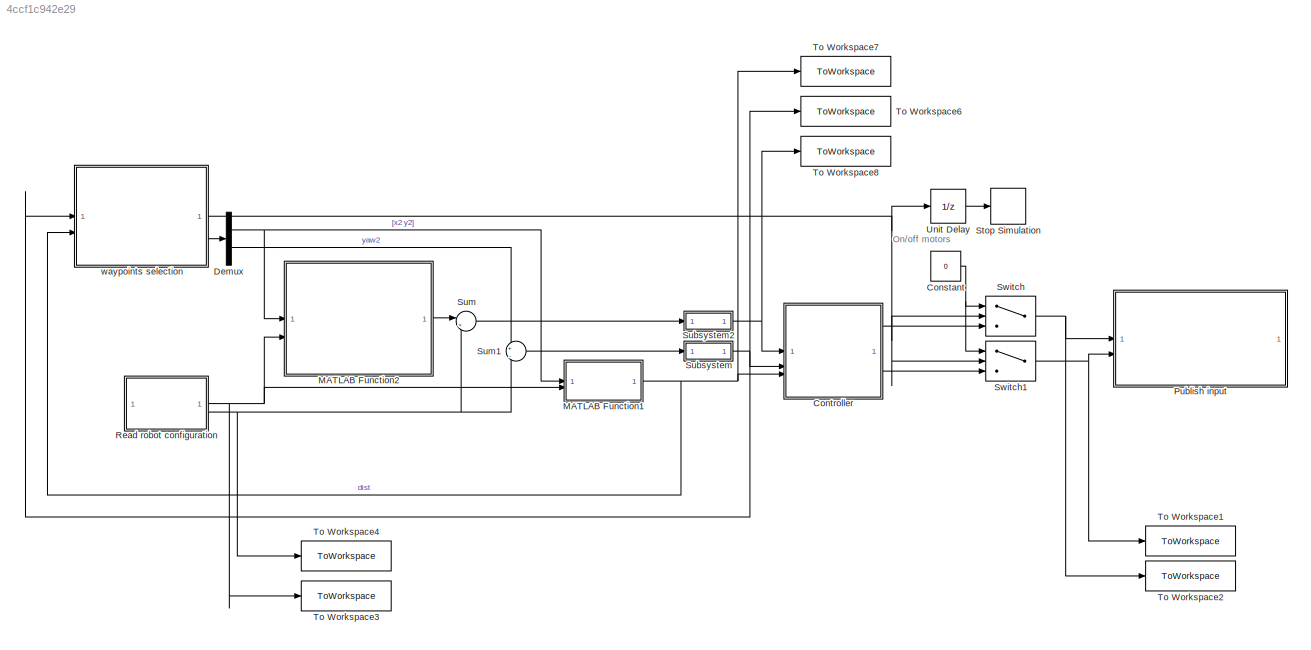
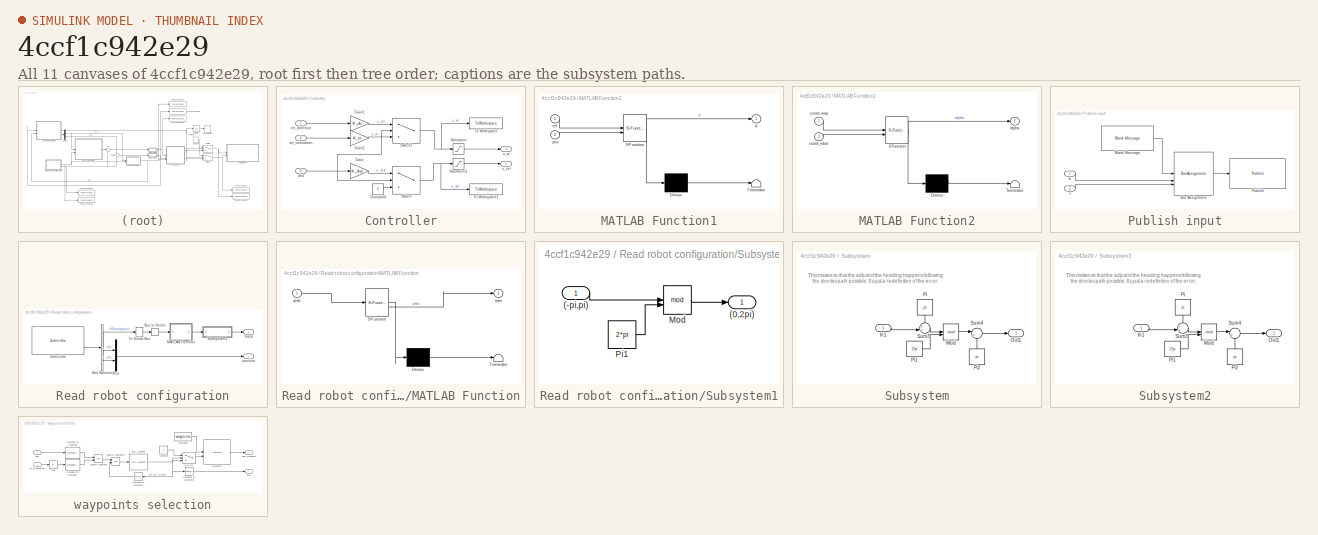
[diagram: thumbnail index - all 11 canvases of the model, root first then tree order]
MODEL slx_4ccf1c942e29
KIND model
CONFIG AbsTol = auto
CONFIG EnableMultiTasking = off
CONFIG FixedStep = 1/f_sim
CONFIG MaxStep = auto
CONFIG MinStep = auto
CONFIG RelTol = 1e-3
CONFIG SampleTimeConstraint = Unconstrained
CONFIG SolverName = FixedStepAuto
CONFIG StartTime = 0.0
CONFIG StopTime = inf
BLOCK [Constant] Constant
  Value = 0
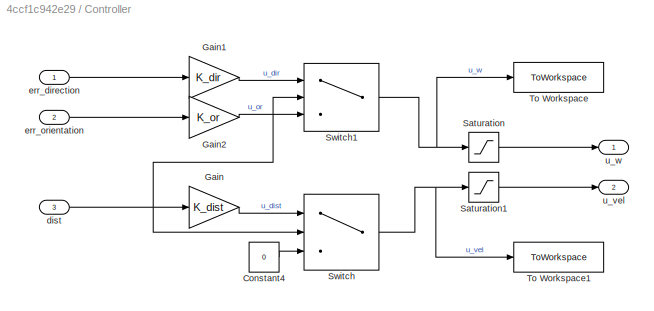
BLOCK [SubSystem] Controller
BLOCK [Constant] Controller/Constant4
  Value = 0
BLOCK [Gain] Controller/Gain
  Gain = K_dist
BLOCK [Gain] Controller/Gain1
  Gain = K_dir
BLOCK [Gain] Controller/Gain2
  Gain = K_or
BLOCK [Saturate] Controller/Saturation
  LowerLimit = w_min
  UpperLimit = w_max
BLOCK [Saturate] Controller/Saturation1
  LowerLimit = v_min
  UpperLimit = v_max
BLOCK [Switch] Controller/Switch
  Criteria = u2 > Threshold
  InputSameDT = off
  SaturateOnIntegerOverflow = off
  Threshold = r
BLOCK [Switch] Controller/Switch1
  Criteria = u2 > Threshold
  InputSameDT = off
  SaturateOnIntegerOverflow = off
  Threshold = r
BLOCK [ToWorkspace] Controller/To Workspace
  FixptAsFi = on
  MaxDataPoints = inf
  SampleTime = -1
  Save2DSignal = 2-D array (concatenate along first dimension)
  VariableName = u_w
BLOCK [ToWorkspace] Controller/To Workspace1
  FixptAsFi = on
  MaxDataPoints = inf
  SampleTime = -1
  Save2DSignal = 2-D array (concatenate along first dimension)
  VariableName = u_v
BLOCK [Inport] Controller/dist
  Port = 3
BLOCK [Inport] Controller/err_direction
BLOCK [Inport] Controller/err_orientation
  Port = 2
BLOCK [Outport] Controller/u_vel
  Port = 2
BLOCK [Outport] Controller/u_w
BLOCK [Demux] Demux
  Outputs = 2
BLOCK [SubSystem] MATLAB Function1
  ErrorFcn = Stateflow.Translate.translate
  PermitHierarchicalResolution = ExplicitOnly
  SFBlockType = MATLAB Function
  TreatAsAtomicUnit = on
BLOCK [Demux] MATLAB Function1/ Demux 
  Outputs = 1
BLOCK [S-Function] MATLAB Function1/ SFunction 
  EnableBusSupport = on
  FunctionName = sf_sfun
  PortCounts = [2 2]
  SFcnIsStateOwnerBlock = off
  SFunctionDeploymentMode = off
  Tag = Stateflow S-Function 1
BLOCK [Terminator] MATLAB Function1/ Terminator 
BLOCK [Outport] MATLAB Function1/d
BLOCK [Inport] MATLAB Function1/pos
  Port = 2
BLOCK [Inport] MATLAB Function1/ref
BLOCK [SubSystem] MATLAB Function2
  ErrorFcn = Stateflow.Translate.translate
  PermitHierarchicalResolution = ExplicitOnly
  SFBlockType = MATLAB Function
  TreatAsAtomicUnit = on
BLOCK [Demux] MATLAB Function2/ Demux 
  Outputs = 1
BLOCK [S-Function] MATLAB Function2/ SFunction 
  EnableBusSupport = on
  FunctionName = sf_sfun
  PortCounts = [2 2]
  SFcnIsStateOwnerBlock = off
  SFunctionDeploymentMode = off
  Tag = Stateflow S-Function 3
BLOCK [Terminator] MATLAB Function2/ Terminator 
BLOCK [Outport] MATLAB Function2/alpha
BLOCK [Inport] MATLAB Function2/coord_robot
  Port = 2
BLOCK [Inport] MATLAB Function2/coord_way
BLOCK [SubSystem] Publish input
BLOCK [Reference] Publish input/Blank Message  REF=robotlib/Blank Message
  SourceBlock = robotlib/Blank Message
  SourceType = ROS Blank Message
BLOCK [BusAssignment] Publish input/Bus Assignment
  AssignedSignals = Angular.Z,Linear.X
BLOCK [Reference] Publish input/Publish  REF=robotlib/Publish
  SourceBlock = robotlib/Publish
  SourceType = ROS Publish
BLOCK [Inport] Publish input/v
  Port = 2
BLOCK [Inport] Publish input/w
BLOCK [SubSystem] Read robot configuration
BLOCK [BusSelector] Read robot configuration/Bus Selector
  OutputSignals = Pose.Pose.Orientation,Pose.Pose.Position.X,Pose.Pose.Position.Y
BLOCK [BusToVector] Read robot configuration/Bus to Vector
BLOCK [SubSystem] Read robot configuration/MATLAB Function
  ErrorFcn = Stateflow.Translate.translate
  PermitHierarchicalResolution = ExplicitOnly
  SFBlockType = MATLAB Function
  TreatAsAtomicUnit = on
BLOCK [Demux] Read robot configuration/MATLAB Function/ Demux 
  Outputs = 1
BLOCK [S-Function] Read robot configuration/MATLAB Function/ SFunction 
  EnableBusSupport = on
  FunctionName = sf_sfun
  PortCounts = [1 2]
  SFcnIsStateOwnerBlock = off
  SFunctionDeploymentMode = off
  Tag = Stateflow S-Function 2
BLOCK [Terminator] Read robot configuration/MATLAB Function/ Terminator 
BLOCK [Inport] Read robot configuration/MATLAB Function/quat
BLOCK [Outport] Read robot configuration/MATLAB Function/yaw
BLOCK [Mux] Read robot configuration/Mux
  DisplayOption = bar
  Inputs = 2
BLOCK [Reference] Read robot configuration/Subscribe  REF=robotlib/Subscribe
  SourceBlock = robotlib/Subscribe
  SourceType = ROS Subscribe
BLOCK [SubSystem] Read robot configuration/Subsystem1
BLOCK [Inport] Read robot configuration/Subsystem1/(-pi,pi)
BLOCK [Outport] Read robot configuration/Subsystem1/(0,2pi)
BLOCK [Math] Read robot configuration/Subsystem1/Mod
  Operator = mod
BLOCK [Constant] Read robot configuration/Subsystem1/Pi1
  OutDataTypeStr = Inherit: Inherit via back propagation
  Value = 2*pi
BLOCK [SignalConversion] Read robot configuration/To Virtual Bus
  ConversionOutput = Virtual bus
  OverrideOpt = off
BLOCK [Outport] Read robot configuration/position
BLOCK [Outport] Read robot configuration/theta
  Port = 2
BLOCK [Stop] Stop Simulation
BLOCK [SubSystem] Subsystem
BLOCK [Inport] Subsystem/In1
BLOCK [Math] Subsystem/Mod
  Operator = mod
BLOCK [Outport] Subsystem/Out1
BLOCK [Constant] Subsystem/Pi
  NameLocation = left
  OutDataTypeStr = Inherit: Inherit via back propagation
  Value = pi
BLOCK [Constant] Subsystem/Pi1
  OutDataTypeStr = Inherit: Inherit via back propagation
  Value = 2*pi
BLOCK [Constant] Subsystem/Pi2
  NameLocation = right
  OutDataTypeStr = Inherit: Inherit via back propagation
  Value = pi
BLOCK [Sum] Subsystem/Sum3
  Inputs = ++|
BLOCK [Sum] Subsystem/Sum4
  Inputs = |+-
BLOCK [SubSystem] Subsystem2
BLOCK [Inport] Subsystem2/In1
BLOCK [Math] Subsystem2/Mod
  Operator = mod
BLOCK [Outport] Subsystem2/Out1
BLOCK [Constant] Subsystem2/Pi
  NameLocation = left
  OutDataTypeStr = Inherit: Inherit via back propagation
  Value = pi
BLOCK [Constant] Subsystem2/Pi1
  OutDataTypeStr = Inherit: Inherit via back propagation
  Value = 2*pi
BLOCK [Constant] Subsystem2/Pi2
  NameLocation = right
  OutDataTypeStr = Inherit: Inherit via back propagation
  Value = pi
BLOCK [Sum] Subsystem2/Sum3
  Inputs = ++|
BLOCK [Sum] Subsystem2/Sum4
  Inputs = |+-
BLOCK [Sum] Sum
  Inputs = |+-
BLOCK [Sum] Sum1
  Inputs = +|-
BLOCK [Switch] Switch
  Criteria = u2 > Threshold
  InputSameDT = off
  SaturateOnIntegerOverflow = off
BLOCK [Switch] Switch1
  Criteria = u2 > Threshold
  InputSameDT = off
  SaturateOnIntegerOverflow = off
BLOCK [ToWorkspace] To Workspace1
  FixptAsFi = on
  MaxDataPoints = inf
  SampleTime = -1
  Save2DSignal = 2-D array (concatenate along first dimension)
  VariableName = v_cmd
BLOCK [ToWorkspace] To Workspace2
  FixptAsFi = on
  MaxDataPoints = inf
  SampleTime = -1
  Save2DSignal = 2-D array (concatenate along first dimension)
  VariableName = w_cmd
BLOCK [ToWorkspace] To Workspace3
  FixptAsFi = on
  MaxDataPoints = inf
  SampleTime = -1
  Save2DSignal = 2-D array (concatenate along first dimension)
  VariableName = position
BLOCK [ToWorkspace] To Workspace4
  FixptAsFi = on
  MaxDataPoints = inf
  SampleTime = -1
  Save2DSignal = 2-D array (concatenate along first dimension)
  VariableName = orientation
BLOCK [ToWorkspace] To Workspace6
  FixptAsFi = on
  MaxDataPoints = inf
  SampleTime = -1
  Save2DSignal = 2-D array (concatenate along first dimension)
  VariableName = err_orient
BLOCK [ToWorkspace] To Workspace7
  FixptAsFi = on
  MaxDataPoints = inf
  SampleTime = -1
  Save2DSignal = 2-D array (concatenate along first dimension)
  VariableName = dist
BLOCK [ToWorkspace] To Workspace8
  FixptAsFi = on
  MaxDataPoints = inf
  SampleTime = -1
  Save2DSignal = 2-D array (concatenate along first dimension)
  VariableName = err_dir
BLOCK [UnitDelay] Unit Delay
  HasFrameUpgradeWarning = on
  SampleTime = 3
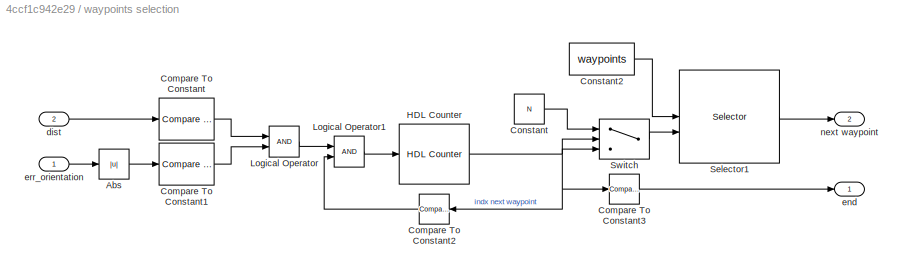
BLOCK [SubSystem] waypoints selection
BLOCK [Abs] waypoints selection/Abs
  SaturateOnIntegerOverflow = off
BLOCK [Reference] waypoints selection/Compare To Constant  REF=simulink/Logic and Bit
Operations/Compare
To Constant
  SourceBlock = simulink/Logic and Bit\nOperations/Compare\nTo Constant
  SourceType = Compare To Constant
BLOCK [Reference] waypoints selection/Compare To Constant1  REF=simulink/Logic and Bit
Operations/Compare
To Constant
  SourceBlock = simulink/Logic and Bit\nOperations/Compare\nTo Constant
  SourceType = Compare To Constant
BLOCK [Reference] waypoints selection/Compare To Constant2  REF=simulink/Logic and Bit
Operations/Compare
To Constant
  SourceBlock = simulink/Logic and Bit\nOperations/Compare\nTo Constant
  SourceType = Compare To Constant
BLOCK [Reference] waypoints selection/Compare To Constant3  REF=simulink/Logic and Bit
Operations/Compare
To Constant
  SourceBlock = simulink/Logic and Bit\nOperations/Compare\nTo Constant
  SourceType = Compare To Constant
BLOCK [Constant] waypoints selection/Constant
  Value = N
BLOCK [Constant] waypoints selection/Constant2
  Value = waypoints
BLOCK [Reference] waypoints selection/HDL Counter  REF=hdlsllib/Sources/HDL Counter
  SourceBlock = hdlsllib/Sources/HDL Counter
  SourceType = HDL Counter
BLOCK [Logic] waypoints selection/Logical Operator
  AllPortsSameDT = off
  OutDataTypeStr = boolean
BLOCK [Logic] waypoints selection/Logical Operator1
  AllPortsSameDT = off
  OutDataTypeStr = boolean
BLOCK [Selector] waypoints selection/Selector1
  IndexOptions = Index vector (port),Select all
  Indices = [1 3],[1 2]
  InputPortWidth = 3
  NumberOfDimensions = 2
  OutputSizes = 1,1
BLOCK [Switch] waypoints selection/Switch
  Criteria = u2 > Threshold
  InputSameDT = off
  SaturateOnIntegerOverflow = off
  Threshold = N
BLOCK [Inport] waypoints selection/dist
  Port = 2
BLOCK [Outport] waypoints selection/end
BLOCK [Inport] waypoints selection/err_orientation
BLOCK [Outport] waypoints selection/next waypoint
  Port = 2
ANNOTATION (root): On/off motors
ANNOTATION Subsystem: This makes so that the adjust of the heading happens following the shortes path possible. It's just a redefinition of the error.
ANNOTATION Subsystem2: This makes so that the adjust of the heading happens following the shortes path possible. It's just a redefinition of the error.
NET Constant:1 -> Switch1:1, Switch:1
LINE Controller/Constant4:1 -> Controller/Switch:3
LINE Controller/Gain1:1 -> Controller/Switch1:1
LINE Controller/Gain2:1 -> Controller/Switch1:3
LINE Controller/Gain:1 -> Controller/Switch:1
LINE Controller/Saturation1:1 -> Controller/u_vel:1
LINE Controller/Saturation:1 -> Controller/u_w:1
NET Controller/Switch1:1 -> Controller/Saturation:1, Controller/To Workspace:1
NET Controller/Switch:1 -> Controller/Saturation1:1, Controller/To Workspace1:1
NET Controller/dist:1 -> Controller/Gain:1, Controller/Switch1:2, Controller/Switch:2
LINE Controller/err_direction:1 -> Controller/Gain1:1
LINE Controller/err_orientation:1 -> Controller/Gain2:1
LINE Controller:1 -> Switch:3
LINE Controller:2 -> Switch1:3
NET Demux:1 -> MATLAB Function1:1, MATLAB Function2:1
LINE Demux:2 -> Sum1:1
NET MATLAB Function1:1 -> Controller:3, To Workspace7:1, waypoints selection:2
LINE MATLAB Function2:1 -> Sum:1
LINE Publish input/Blank Message:1 -> Publish input/Bus Assignment:1
LINE Publish input/Bus Assignment:1 -> Publish input/Publish:1
LINE Publish input/v:1 -> Publish input/Bus Assignment:3
LINE Publish input/w:1 -> Publish input/Bus Assignment:2
LINE Read robot configuration/Bus Selector:1 -> Read robot configuration/To Virtual Bus:1
LINE Read robot configuration/Bus Selector:2 -> Read robot configuration/Mux:1
LINE Read robot configuration/Bus Selector:3 -> Read robot configuration/Mux:2
LINE Read robot configuration/Bus to Vector:1 -> Read robot configuration/MATLAB Function:1
LINE Read robot configuration/MATLAB Function:1 -> Read robot configuration/Subsystem1:1
LINE Read robot configuration/Mux:1 -> Read robot configuration/position:1
LINE Read robot configuration/Subscribe:2 -> Read robot configuration/Bus Selector:1
LINE Read robot configuration/Subsystem1/(-pi,pi):1 -> Read robot configuration/Subsystem1/Mod:1
LINE Read robot configuration/Subsystem1/Mod:1 -> Read robot configuration/Subsystem1/(0,2pi):1
LINE Read robot configuration/Subsystem1/Pi1:1 -> Read robot configuration/Subsystem1/Mod:2
LINE Read robot configuration/Subsystem1:1 -> Read robot configuration/theta:1
LINE Read robot configuration/To Virtual Bus:1 -> Read robot configuration/Bus to Vector:1
NET Read robot configuration:1 -> MATLAB Function1:2, MATLAB Function2:2, To Workspace3:1
NET Read robot configuration:2 -> Sum1:2, Sum:2, To Workspace4:1
LINE Subsystem/In1:1 -> Subsystem/Sum3:2
LINE Subsystem/Mod:1 -> Subsystem/Sum4:1
LINE Subsystem/Pi1:1 -> Subsystem/Mod:2
LINE Subsystem/Pi2:1 -> Subsystem/Sum4:2
LINE Subsystem/Pi:1 -> Subsystem/Sum3:1
LINE Subsystem/Sum3:1 -> Subsystem/Mod:1
LINE Subsystem/Sum4:1 -> Subsystem/Out1:1
LINE Subsystem2/In1:1 -> Subsystem2/Sum3:2
LINE Subsystem2/Mod:1 -> Subsystem2/Sum4:1
LINE Subsystem2/Pi1:1 -> Subsystem2/Mod:2
LINE Subsystem2/Pi2:1 -> Subsystem2/Sum4:2
LINE Subsystem2/Pi:1 -> Subsystem2/Sum3:1
LINE Subsystem2/Sum3:1 -> Subsystem2/Mod:1
LINE Subsystem2/Sum4:1 -> Subsystem2/Out1:1
NET Subsystem2:1 -> Controller:1, To Workspace8:1
NET Subsystem:1 -> Controller:2, To Workspace6:1, waypoints selection:1
LINE Sum1:1 -> Subsystem:1
LINE Sum:1 -> Subsystem2:1
NET Switch1:1 -> Publish input:2, To Workspace1:1
NET Switch:1 -> Publish input:1, To Workspace2:1
LINE Unit Delay:1 -> Stop Simulation:1
LINE waypoints selection/Abs:1 -> waypoints selection/Compare To Constant1:1
LINE waypoints selection/Compare To Constant1:1 -> waypoints selection/Logical Operator:2
LINE waypoints selection/Compare To Constant2:1 -> waypoints selection/Logical Operator1:2
LINE waypoints selection/Compare To Constant3:1 -> waypoints selection/end:1
LINE waypoints selection/Compare To Constant:1 -> waypoints selection/Logical Operator:1
LINE waypoints selection/Constant2:1 -> waypoints selection/Selector1:1
LINE waypoints selection/Constant:1 -> waypoints selection/Switch:1
NET waypoints selection/HDL Counter:1 -> waypoints selection/Compare To Constant2:1, waypoints selection/Compare To Constant3:1, waypoints selection/Switch:2, waypoints selection/Switch:3
LINE waypoints selection/Logical Operator1:1 -> waypoints selection/HDL Counter:1
LINE waypoints selection/Logical Operator:1 -> waypoints selection/Logical Operator1:1
LINE waypoints selection/Selector1:1 -> waypoints selection/next waypoint:1
LINE waypoints selection/Switch:1 -> waypoints selection/Selector1:2
LINE waypoints selection/dist:1 -> waypoints selection/Compare To Constant:1
LINE waypoints selection/err_orientation:1 -> waypoints selection/Abs:1
NET waypoints selection:1 -> Switch1:2, Switch:2, Unit Delay:1
LINE waypoints selection:2 -> Demux:1
note: NET lines group one-source signal fan-out (src -> all destinations, sorted); 1:1 wires keep LINE
CHART Read robot configuration/MATLAB Function states=1 transitions=1
  STATE_LABEL 'eML_blk_kernel()'
  STATE_LABEL 'SCRIPT:\nfunction yaw=quat2yaw(quat)\n\nq=zeros(1,4);\n\nq(1)=quat(1);\nq(2)=quat(2);\nq(3)=quat(3);\nq(4)=quat(4);\n\neul=quat2eul(q);\n\nyaw=eul(3);\n\nend\n'
CHART MATLAB Function2 states=1 transitions=1
  STATE_LABEL 'eML_blk_kernel()'
  STATE_LABEL 'SCRIPT:\nfunction alpha=ReferenceDirection(coord_way,coord_robot)\n\n% computes the direction (angle wrt positive x axis,\n% counterclockwise) between two inputed points [x1 y1 ; x2 y2] \n\nx1=coord_robot(1);\ny1=coord_robot(2);\nx2=coord_way(1);\ny2=coord_way(2);\n\nalpha=atan2((y2-y1),(x2-x1)); % (-pi,pi)\n\nalpha=mod(alpha,2*pi); % (0,2pi)\n\nend\n'
CHART MATLAB Function1 states=1 transitions=1
  STATE_LABEL 'eML_blk_kernel()'
  STATE_LABEL 'SCRIPT:\nfunction d=dist(ref,pos)\n\n% computes the distance between two points (x1,y1) and (x2,y2)\n\nx_ref=ref(1);\ny_ref=ref(2);\nx_pos=pos(1);\ny_pos=pos(2);\n\nd=sqrt((x_ref-x_pos)^2+(y_ref-y_pos)^2);\n\nend\n'
CHART  states=0 transitions=0
CHART  states=0 transitions=0
CHART  states=0 transitions=0
